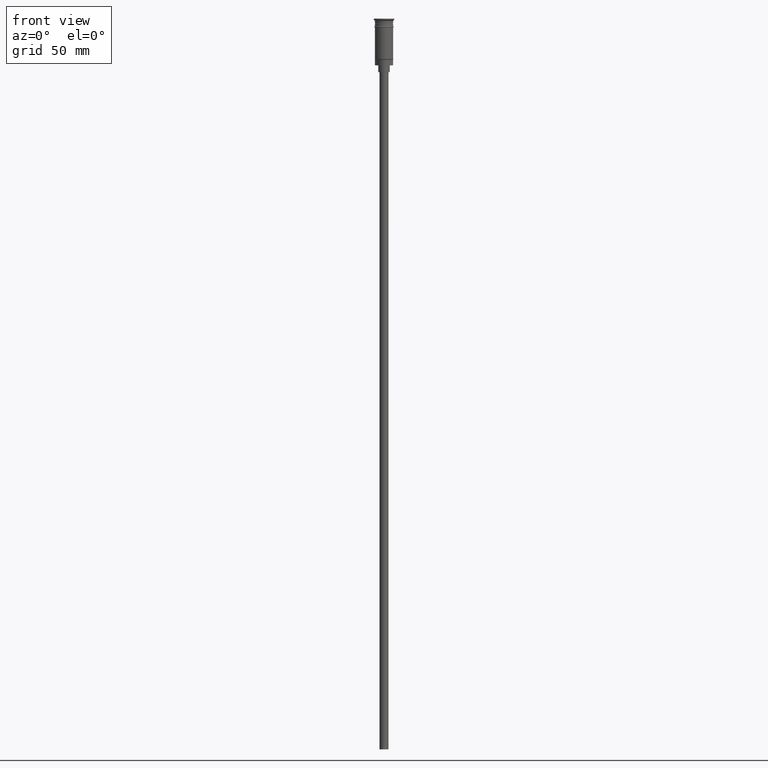
[diagram: clean part render]
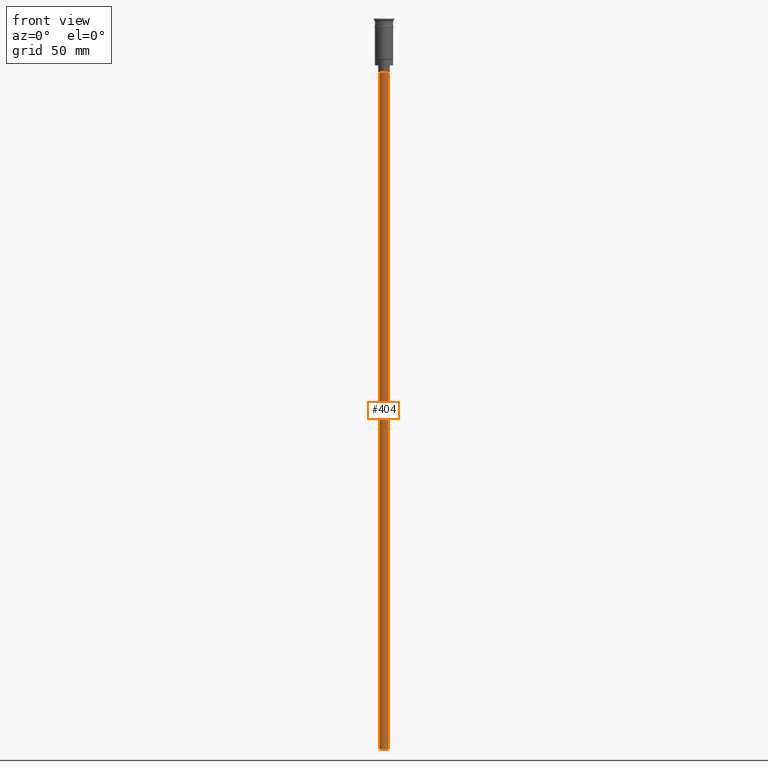
[diagram: same view with one face highlighted and labeled with its STEP entity id]
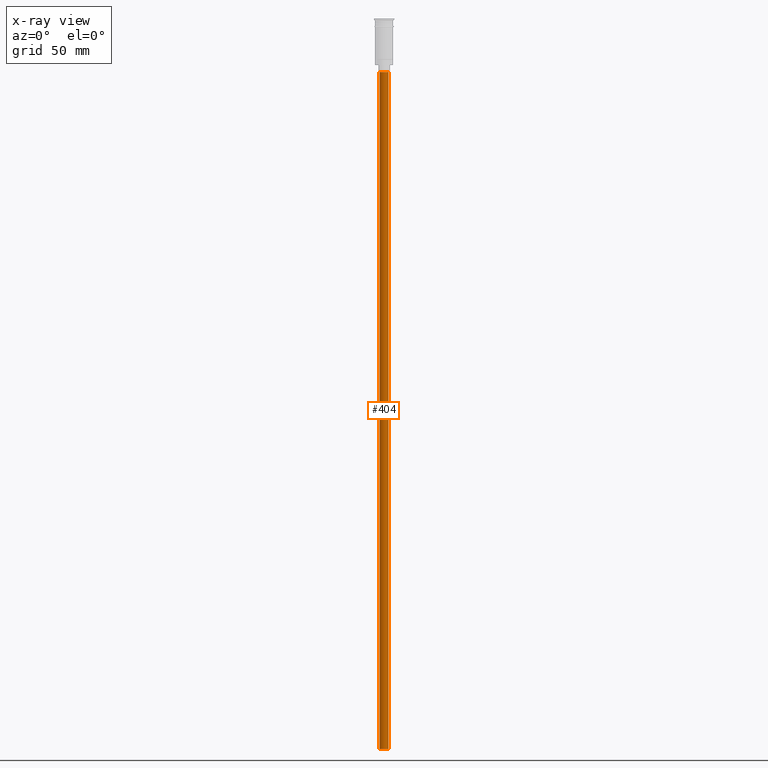
[diagram: x-ray of the same camera — body ghosted, the highlighted face saturated]
A machine part, front view. The second image highlights one B-rep face of the part: STEP entity #404.
The next image is the same camera in x-ray: the body ghosted, the highlighted face saturated — about 0% of this face is hidden behind the body in this view.
In plain terms, the highlighted cylindrical surface (edge-blend (fillet) strip) has radius 2 mm, axis along (-0, -0, 1).
Its self-contained STEP definition (entity closure, byte-faithful):
#61 = EDGE_CURVE ( 'NONE', #558, #1413, #219, .T. ) ;
#75 = LINE ( 'NONE', #433, #792 ) ;
#104 = CARTESIAN_POINT ( 'NONE',  ( 0.000000000000000000, 0.000000000000000000, -23.49999999999999645 ) ) ;
#110 = CARTESIAN_POINT ( 'NONE',  ( 2.000000000000000000, 0.000000000000000000, -23.49999999999999645 ) ) ;
#154 = FACE_OUTER_BOUND ( 'NONE', #842, .T. ) ;
#160 = CARTESIAN_POINT ( 'NONE',  ( 0.000000000000000000, 0.000000000000000000, -320.5000000000000000 ) ) ;
#219 = CIRCLE ( 'NONE', #1266, 2.000000000000000000 ) ;
#231 = CARTESIAN_POINT ( 'NONE',  ( 0.000000000000000000, 0.000000000000000000, -320.5000000000000000 ) ) ;
#293 = AXIS2_PLACEMENT_3D ( 'NONE', #231, #1579, #1052 ) ;
#333 = EDGE_CURVE ( 'NONE', #1108, #1413, #75, .T. ) ;
#347 = CYLINDRICAL_SURFACE ( 'NONE', #293, 2.000000000000000000 ) ;
#381 = ORIENTED_EDGE ( 'NONE', *, *, #333, .F. ) ;
#404 = ADVANCED_FACE ( 'NONE', ( #154 ), #347, .T. ) ;
#411 = DIRECTION ( 'NONE',  ( -1.000000000000000000, 0.000000000000000000, 0.000000000000000000 ) ) ;
#433 = CARTESIAN_POINT ( 'NONE',  ( -2.000000000000000000, 2.449293598294706414E-16, -320.5000000000000000 ) ) ;
#542 = DIRECTION ( 'NONE',  ( -0.000000000000000000, -0.000000000000000000, 1.000000000000000000 ) ) ;
#558 = VERTEX_POINT ( 'NONE', #110 ) ;
#785 = EDGE_CURVE ( 'NONE', #1267, #1108, #908, .T. ) ;
#792 = VECTOR ( 'NONE', #542, 1000.000000000000000 ) ;
#836 = ORIENTED_EDGE ( 'NONE', *, *, #1217, .T. ) ;
#842 = EDGE_LOOP ( 'NONE', ( #381, #1167, #836, #1006 ) ) ;
#908 = CIRCLE ( 'NONE', #1013, 2.000000000000000000 ) ;
#939 = DIRECTION ( 'NONE',  ( 0.000000000000000000, 0.000000000000000000, -1.000000000000000000 ) ) ;
#1006 = ORIENTED_EDGE ( 'NONE', *, *, #61, .T. ) ;
#1013 = AXIS2_PLACEMENT_3D ( 'NONE', #160, #1283, #411 ) ;
#1027 = CARTESIAN_POINT ( 'NONE',  ( 2.000000000000000000, 0.000000000000000000, -320.5000000000000000 ) ) ;
#1052 = DIRECTION ( 'NONE',  ( 1.000000000000000000, 0.000000000000000000, 0.000000000000000000 ) ) ;
#1108 = VERTEX_POINT ( 'NONE', #1392 ) ;
#1167 = ORIENTED_EDGE ( 'NONE', *, *, #785, .F. ) ;
#1183 = DIRECTION ( 'NONE',  ( -0.000000000000000000, -0.000000000000000000, 1.000000000000000000 ) ) ;
#1217 = EDGE_CURVE ( 'NONE', #1267, #558, #1536, .T. ) ;
#1225 = VECTOR ( 'NONE', #1183, 1000.000000000000000 ) ;
#1266 = AXIS2_PLACEMENT_3D ( 'NONE', #104, #939, #1575 ) ;
#1267 = VERTEX_POINT ( 'NONE', #1280 ) ;
#1280 = CARTESIAN_POINT ( 'NONE',  ( 2.000000000000000000, 0.000000000000000000, -320.5000000000000000 ) ) ;
#1283 = DIRECTION ( 'NONE',  ( 0.000000000000000000, 0.000000000000000000, -1.000000000000000000 ) ) ;
#1335 = CARTESIAN_POINT ( 'NONE',  ( -2.000000000000000000, 2.449293598294706414E-16, -23.49999999999999645 ) ) ;
#1392 = CARTESIAN_POINT ( 'NONE',  ( -2.000000000000000000, 2.449293598294706414E-16, -320.5000000000000000 ) ) ;
#1413 = VERTEX_POINT ( 'NONE', #1335 ) ;
#1536 = LINE ( 'NONE', #1027, #1225 ) ;
#1575 = DIRECTION ( 'NONE',  ( -1.000000000000000000, 0.000000000000000000, 0.000000000000000000 ) ) ;
#1579 = DIRECTION ( 'NONE',  ( -0.000000000000000000, -0.000000000000000000, 1.000000000000000000 ) ) ;